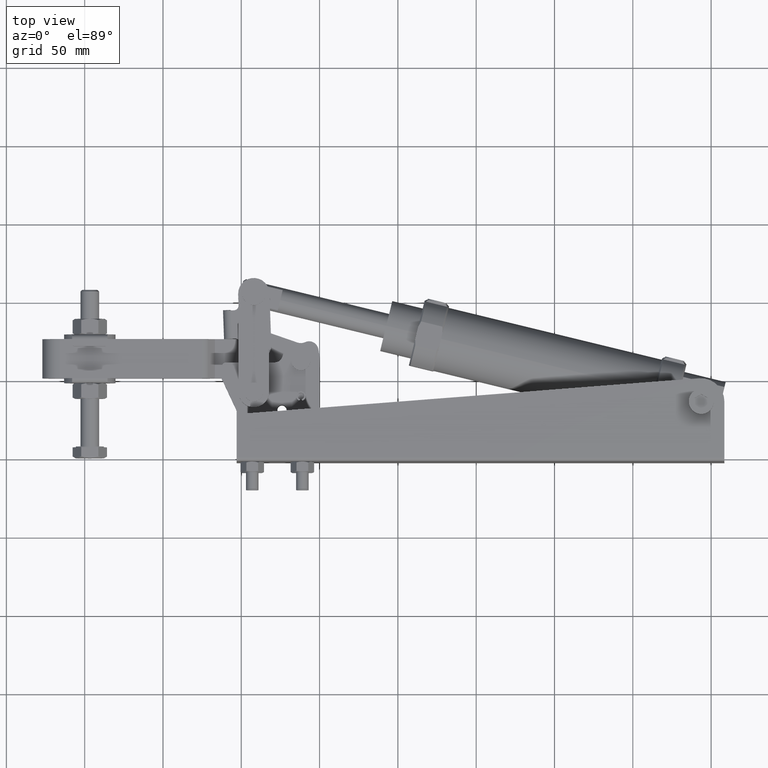
[diagram: clean part render]
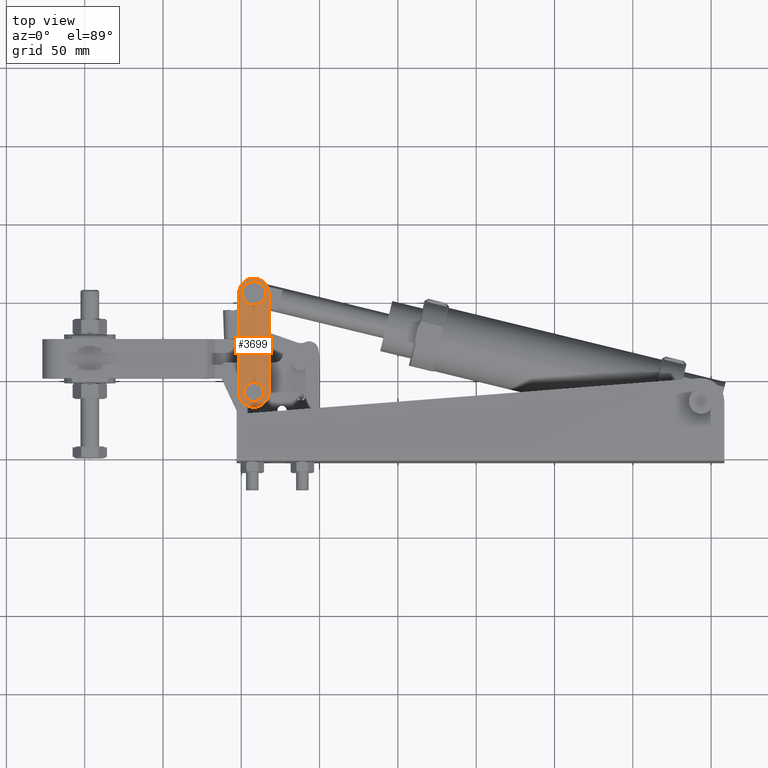
[diagram: same view with one face highlighted and labeled with its STEP entity id]
A machine part, top view. The second image highlights one B-rep face of the part: STEP entity #3699.
In plain terms, the highlighted planar face has unit normal (-0, -0, 1).
Its self-contained STEP definition (entity closure, byte-faithful):
#60 = ORIENTED_EDGE ( 'NONE', *, *, #5397, .T. ) ;
#1024 = VECTOR ( 'NONE', #11550, 1000.000000000000100 ) ;
#1288 = VECTOR ( 'NONE', #19347, 1000.000000000000100 ) ;
#1361 = ORIENTED_EDGE ( 'NONE', *, *, #21724, .F. ) ;
#1616 = DIRECTION ( 'NONE',  ( -2.560005505760831100E-022, -5.303628556218821100E-023, 1.000000000000000000 ) ) ;
#1765 = DIRECTION ( 'NONE',  ( 0.0000000000000000000, 0.0000000000000000000, 1.000000000000000000 ) ) ;
#1931 = CARTESIAN_POINT ( 'NONE',  ( -49.49873879934092000, 105.0001501301299200, 18.00000000000013900 ) ) ;
#1940 = EDGE_CURVE ( 'NONE', #6672, #11649, #3993, .T. ) ;
#2084 = CARTESIAN_POINT ( 'NONE',  ( -51.74999999800680000, 42.00019518557950000, 18.00000000000006400 ) ) ;
#2184 = ORIENTED_EDGE ( 'NONE', *, *, #3524, .T. ) ;
#2464 = AXIS2_PLACEMENT_3D ( 'NONE', #20501, #7673, #18667 ) ;
#2528 = EDGE_LOOP ( 'NONE', ( #1361, #17919 ) ) ;
#2667 = EDGE_CURVE ( 'NONE', #15541, #10456, #9965, .T. ) ;
#2899 = VERTEX_POINT ( 'NONE', #15359 ) ;
#3012 = FACE_OUTER_BOUND ( 'NONE', #15936, .T. ) ;
#3045 = VERTEX_POINT ( 'NONE', #8544 ) ;
#3128 = CIRCLE ( 'NONE', #17899, 5.999999999999999100 ) ;
#3281 = AXIS2_PLACEMENT_3D ( 'NONE', #10753, #1616, #14432 ) ;
#3524 = EDGE_CURVE ( 'NONE', #11620, #6672, #15337, .T. ) ;
#3699 = ADVANCED_FACE ( 'NONE', ( #12182, #17619, #3012 ), #23589, .T. ) ;
#3993 = CIRCLE ( 'NONE', #2464, 9.750000000000000000 ) ;
#4343 = CIRCLE ( 'NONE', #22174, 9.750000000000000000 ) ;
#4677 = CARTESIAN_POINT ( 'NONE',  ( -51.74999999800680000, 42.00019518557950000, 18.00000000000006400 ) ) ;
#5188 = DIRECTION ( 'NONE',  ( -2.560005505760831100E-022, -5.303628556218822300E-023, 1.000000000000000000 ) ) ;
#5242 = CARTESIAN_POINT ( 'NONE',  ( -41.99999999996051500, 42.00000000000191100, 17.99999999999998600 ) ) ;
#5279 = CARTESIAN_POINT ( 'NONE',  ( -32.24873880279749000, 104.9998048018003400, 18.00000000000006400 ) ) ;
#5397 = EDGE_CURVE ( 'NONE', #9682, #11620, #4343, .T. ) ;
#5447 = DIRECTION ( 'NONE',  ( -0.9999999997996191800, 2.001903359934626900E-005, 0.0000000000000000000 ) ) ;
#5703 = ORIENTED_EDGE ( 'NONE', *, *, #9442, .T. ) ;
#6672 = VERTEX_POINT ( 'NONE', #2084 ) ;
#7083 = DIRECTION ( 'NONE',  ( 0.8439676315693893600, -0.5363941059176129400, 0.0000000000000000000 ) ) ;
#7286 = ORIENTED_EDGE ( 'NONE', *, *, #1940, .T. ) ;
#7304 = DIRECTION ( 'NONE',  ( -2.560005648375092900E-022, -5.303630652402203300E-023, 1.000000000000000000 ) ) ;
#7530 = CIRCLE ( 'NONE', #9058, 7.500000000000002700 ) ;
#7673 = DIRECTION ( 'NONE',  ( -2.560005505760831100E-022, -5.303628556218822300E-023, 1.000000000000000000 ) ) ;
#8523 = DIRECTION ( 'NONE',  ( -2.560005648375092900E-022, -5.303630652402203300E-023, 1.000000000000000000 ) ) ;
#8544 = CARTESIAN_POINT ( 'NONE',  ( -47.06380578937685000, 45.21836463550759800, 17.99999999999998600 ) ) ;
#9058 = AXIS2_PLACEMENT_3D ( 'NONE', #19510, #8523, #21348 ) ;
#9442 = EDGE_CURVE ( 'NONE', #11649, #9682, #15662, .T. ) ;
#9682 = VERTEX_POINT ( 'NONE', #5279 ) ;
#9965 = CIRCLE ( 'NONE', #17063, 7.500000000000002700 ) ;
#10456 = VERTEX_POINT ( 'NONE', #1931 ) ;
#10753 = CARTESIAN_POINT ( 'NONE',  ( -41.99999999996051500, 42.00000000000191100, 18.00000000000006400 ) ) ;
#11230 = ORIENTED_EDGE ( 'NONE', *, *, #14853, .F. ) ;
#11550 = DIRECTION ( 'NONE',  ( 2.001903359902592500E-005, 0.9999999997996190700, 5.304141043518410500E-023 ) ) ;
#11620 = VERTEX_POINT ( 'NONE', #15498 ) ;
#11649 = VERTEX_POINT ( 'NONE', #22946 ) ;
#12182 = FACE_BOUND ( 'NONE', #15684, .T. ) ;
#12731 = CARTESIAN_POINT ( 'NONE',  ( -41.99999999996051500, 42.00000000000191100, 17.99999999999998600 ) ) ;
#14432 = DIRECTION ( 'NONE',  ( 0.9999999997996190700, -2.001903359902592500E-005, 2.559994887896028300E-022 ) ) ;
#14579 = DIRECTION ( 'NONE',  ( 0.8439676315693893600, -0.5363941059176129400, 0.0000000000000000000 ) ) ;
#14853 = EDGE_CURVE ( 'NONE', #10456, #15541, #7530, .T. ) ;
#15009 = CARTESIAN_POINT ( 'NONE',  ( -34.49873880234662900, 104.9998498446259300, 18.00000000000013900 ) ) ;
#15337 = LINE ( 'NONE', #4677, #1288 ) ;
#15359 = CARTESIAN_POINT ( 'NONE',  ( -36.93619421054418000, 38.78163536449623200, 17.99999999999998600 ) ) ;
#15498 = CARTESIAN_POINT ( 'NONE',  ( -51.74873879889005900, 105.0001951729555100, 18.00000000000006400 ) ) ;
#15541 = VERTEX_POINT ( 'NONE', #15009 ) ;
#15662 = LINE ( 'NONE', #18930, #1024 ) ;
#15684 = EDGE_LOOP ( 'NONE', ( #11230, #22686 ) ) ;
#15936 = EDGE_LOOP ( 'NONE', ( #7286, #5703, #60, #2184 ) ) ;
#16173 = CARTESIAN_POINT ( 'NONE',  ( -41.99873880084377500, 104.9999999873779300, 18.00000000000006400 ) ) ;
#17063 = AXIS2_PLACEMENT_3D ( 'NONE', #20133, #7304, #5447 ) ;
#17619 = FACE_BOUND ( 'NONE', #2528, .T. ) ;
#17899 = AXIS2_PLACEMENT_3D ( 'NONE', #5242, #18063, #7083 ) ;
#17919 = ORIENTED_EDGE ( 'NONE', *, *, #21117, .F. ) ;
#18007 = DIRECTION ( 'NONE',  ( -0.9999999997996190700, 2.001903359891927000E-005, 0.0000000000000000000 ) ) ;
#18063 = DIRECTION ( 'NONE',  ( 0.0000000000000000000, 0.0000000000000000000, 1.000000000000000000 ) ) ;
#18667 = DIRECTION ( 'NONE',  ( 0.9999999997996190700, -2.001903359891927000E-005, 0.0000000000000000000 ) ) ;
#18930 = CARTESIAN_POINT ( 'NONE',  ( -32.24873880279749000, 104.9998048018003400, 18.00000000000006400 ) ) ;
#19347 = DIRECTION ( 'NONE',  ( -2.001903359902592500E-005, -0.9999999997996190700, -5.304141043518410500E-023 ) ) ;
#19510 = CARTESIAN_POINT ( 'NONE',  ( -41.99873880084377500, 104.9999999873779300, 18.00000000000013900 ) ) ;
#20133 = CARTESIAN_POINT ( 'NONE',  ( -41.99873880084377500, 104.9999999873779300, 18.00000000000013900 ) ) ;
#20501 = CARTESIAN_POINT ( 'NONE',  ( -41.99999999996051500, 42.00000000000191100, 18.00000000000006400 ) ) ;
#21117 = EDGE_CURVE ( 'NONE', #3045, #2899, #3128, .T. ) ;
#21348 = DIRECTION ( 'NONE',  ( -0.9999999997996191800, 2.001903359934626900E-005, 0.0000000000000000000 ) ) ;
#21724 = EDGE_CURVE ( 'NONE', #2899, #3045, #21984, .T. ) ;
#21984 = CIRCLE ( 'NONE', #22677, 5.999999999999999100 ) ;
#22174 = AXIS2_PLACEMENT_3D ( 'NONE', #16173, #5188, #18007 ) ;
#22677 = AXIS2_PLACEMENT_3D ( 'NONE', #12731, #1765, #14579 ) ;
#22686 = ORIENTED_EDGE ( 'NONE', *, *, #2667, .F. ) ;
#22946 = CARTESIAN_POINT ( 'NONE',  ( -32.25000000191422300, 41.99980481442432300, 18.00000000000006400 ) ) ;
#23589 = PLANE ( 'NONE',  #3281 ) ;